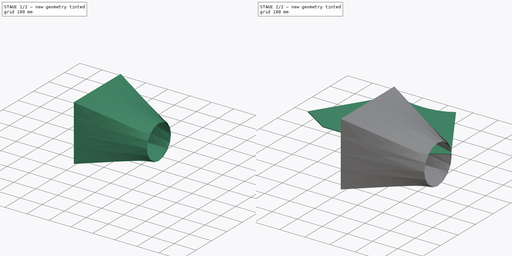
[diagram: build sequence overview — one tinted view per stage of 2, left to right]
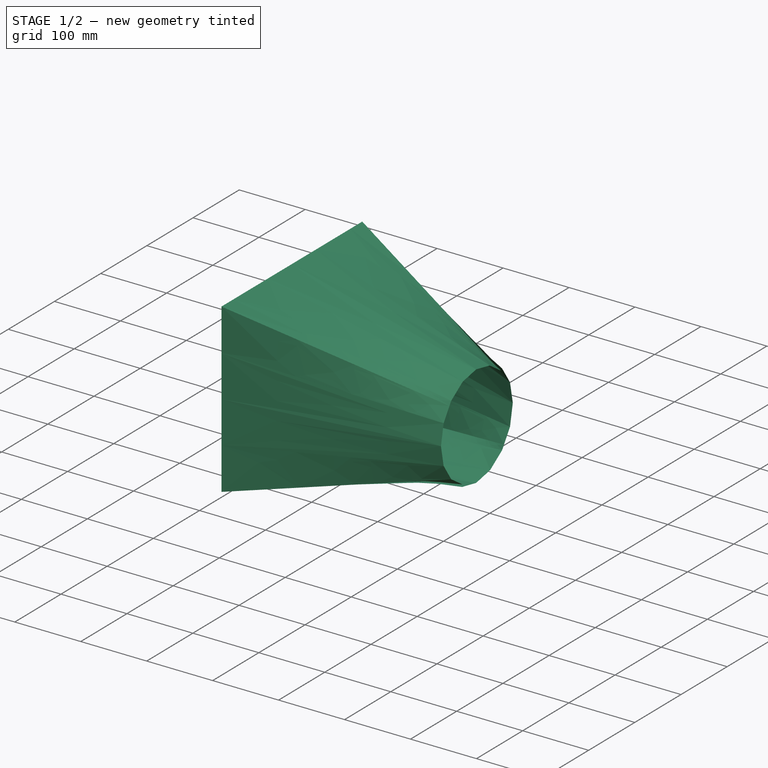
[diagram: stage 1 of 2 — iso view after this stage's code; geometry added in this stage tinted green]
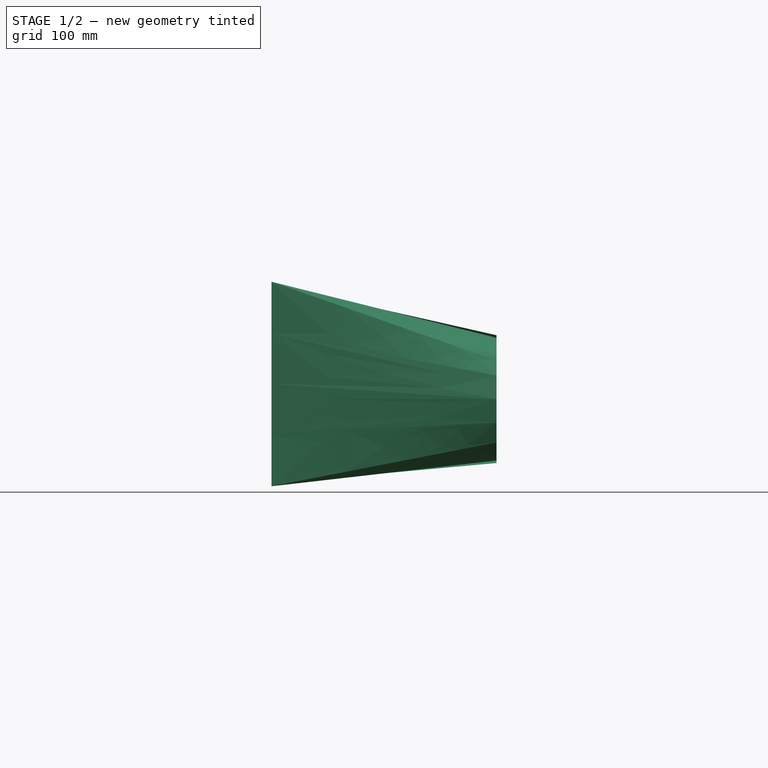
[diagram: stage 1 of 2 — front view after this stage's code; geometry added in this stage tinted green]
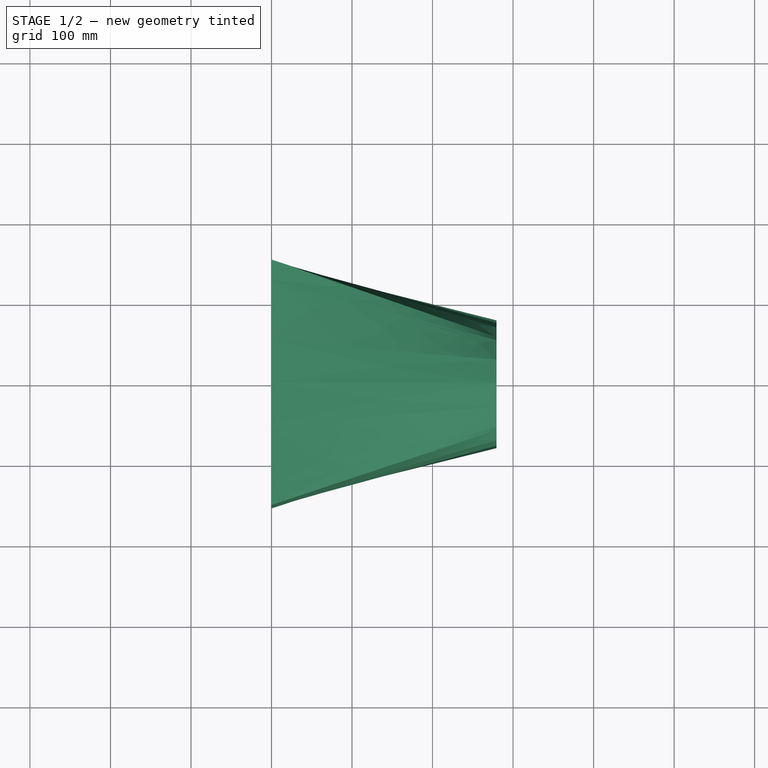
[diagram: stage 1 of 2 — top view after this stage's code; geometry added in this stage tinted green]
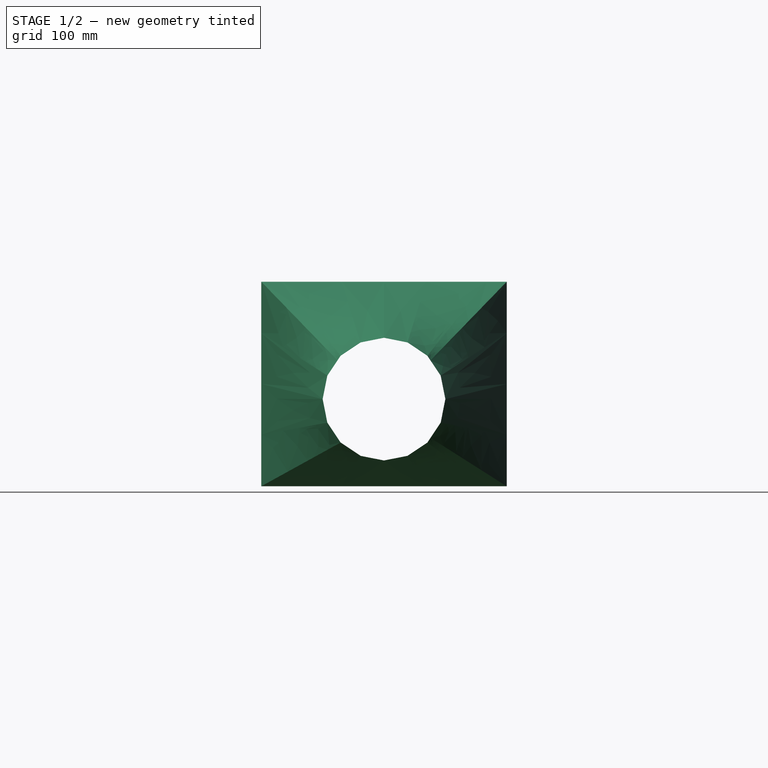
[diagram: stage 1 of 2 — right view after this stage's code; geometry added in this stage tinted green]
FCSTD DOCUMENT  (FreeCAD 1.1R40971 (Git))
Label: square-to-round
License: All rights reserved
LicenseURL: http://en.wikipedia.org/wiki/All_rights_reserved
objects: Sketcher::SketchObject×7, PartDesign::Body×3, App::Point×3, PartDesign::Pad×1, PartDesign::AdditiveLoft×1
note: 23 computed .brp shape members not serialized (recipe doc carries the construction recipe); baked Part::Feature solids carry a one-line shape summary decoded from their .brp

FEATURE [PartDesign::Body] Body001  label="manufacturing"
  AllowCompound = false
  Group = -> [Sketch003,Pad]
  Origin = -> Origin001
  Tip = -> Pad
FEATURE [PartDesign::AdditiveLoft] AdditiveLoft
  Closed = true
  Placement = pos=(0,0,0) rot=(0.57735,0.57735,0.57735;2.0944rad)
  Profile = -> Sketch
  Ruled = true
  Sections = -> [Sketch001]
  Suppressed = false
FEATURE [PartDesign::Body] Body  label="Lofted"
  AllowCompound = false
  Group = -> [Sketch,Sketch001,Sketch002,AdditiveLoft]
  Origin = -> Origin
  Tip = -> AdditiveLoft
FEATURE [Sketcher::SketchObject] Sketch004  label="square001"
  ArcFitTolerance = 1e-06
  ExternalTypes = [0]
  FullyConstrained = true
  MakeInternals = false
  MapMode = 4
  Placement = pos=(0,0,0) rot=(0.57735,0.57735,0.57735;2.0944rad)
  sketch-geometry (4):
    g0: LineSegment StartX=-177.8 StartY=127 StartZ=0 EndX=-177.8 EndY=-127 EndZ=0
    g1: LineSegment StartX=-177.8 StartY=-127 StartZ=0 EndX=177.8 EndY=-127 EndZ=0
    g2: LineSegment StartX=177.8 StartY=-127 StartZ=0 EndX=177.8 EndY=127 EndZ=0
    g3: LineSegment StartX=177.8 StartY=127 StartZ=0 EndX=-177.8 EndY=127 EndZ=0
  constraints (11):
    c: Coincident(g0,g1)
    c: Coincident(g1,g2)
    c: Coincident(g2,g3)
    c: Coincident(g3,g0)
    c: Vertical(g0)
    c: Vertical(g2)
    c: Horizontal(g1)
    c: Horizontal(g3)
    c: DistanceY(g2,g2) = 254
    c: DistanceX(g3,g3) = 355.6
    c: Symmetric(g0,g1,g-1)
FEATURE [Sketcher::SketchObject] Sketch006  label="path001"
  ArcFitTolerance = 1e-06
  ExternalTypes = [0]
  FullyConstrained = true
  MakeInternals = false
  MapMode = 4
  Placement = pos=(0,0,0) rot=(1,0,0;1.5708rad)
  sketch-geometry (1):
    g0: LineSegment StartX=0 StartY=0 StartZ=0 EndX=304.8 EndY=0 EndZ=0
  constraints (3):
    c: Coincident(g0,g-1)
    c: PointOnObject(g0,g-1)
    c: DistanceX(g0,g0) = 304.8
FEATURE [Sketcher::SketchObject] Sketch005  label="round001"
  ArcFitTolerance = 1e-06
  AttachmentSupport = -> [Sketch006]
  ExternalTypes = [0]
  FullyConstrained = true
  MakeInternals = false
  MapMode = 1
  Placement = pos=(304.8,0,0) rot=(0.57735,0.57735,0.57735;2.0944rad)
  sketch-geometry (17):
    g0: LineSegment StartX=53.8815 StartY=53.8815 StartZ=0 EndX=29.1605 EndY=70.3996 EndZ=0
    g1: LineSegment StartX=29.1605 StartY=70.3996 StartZ=0 EndX=0 EndY=76.2 EndZ=0
    g2: LineSegment StartX=0 StartY=76.2 StartZ=0 EndX=-29.1605 EndY=70.3996 EndZ=0
    g3: LineSegment StartX=-29.1605 StartY=70.3996 StartZ=0 EndX=-53.8815 EndY=53.8815 EndZ=0
    g4: LineSegment StartX=-53.8815 StartY=53.8815 StartZ=0 EndX=-70.3996 EndY=29.1605 EndZ=0
    g5: LineSegment StartX=-70.3996 StartY=29.1605 StartZ=0 EndX=-76.2 EndY=-7.674e-13 EndZ=0
    g6: LineSegment StartX=-76.2 StartY=-7.674e-13 StartZ=0 EndX=-70.3996 EndY=-29.1605 EndZ=0
    g7: LineSegment StartX=-70.3996 StartY=-29.1605 StartZ=0 EndX=-53.8815 EndY=-53.8815 EndZ=0
    g8: LineSegment StartX=-53.8815 StartY=-53.8815 StartZ=0 EndX=-29.1605 EndY=-70.3996 EndZ=0
    g9: LineSegment StartX=-29.1605 StartY=-70.3996 StartZ=0 EndX=-1.137e-13 EndY=-76.2 EndZ=0
    g10: LineSegment StartX=-1.137e-13 StartY=-76.2 StartZ=0 EndX=29.1605 EndY=-70.3996 EndZ=0
    g11: LineSegment StartX=29.1605 StartY=-70.3996 StartZ=0 EndX=53.8815 EndY=-53.8815 EndZ=0
    g12: LineSegment StartX=53.8815 StartY=-53.8815 StartZ=0 EndX=70.3996 EndY=-29.1605 EndZ=0
    g13: LineSegment StartX=70.3996 StartY=-29.1605 StartZ=0 EndX=76.2 EndY=2.49e-14 EndZ=0
    g14: LineSegment StartX=76.2 StartY=2.49e-14 StartZ=0 EndX=70.3996 EndY=29.1605 EndZ=0
    g15: LineSegment StartX=70.3996 StartY=29.1605 StartZ=0 EndX=53.8815 EndY=53.8815 EndZ=0
    g16: Circle [constr] CenterX=0 CenterY=0 CenterZ=0 NormalX=0 NormalY=0 NormalZ=1 AngleXU=0 Radius=76.2
  constraints (36):
    c: Coincident(g0,g1)
    c: Coincident(g1,g2)
    c: Coincident(g2,g3)
    c: Coincident(g3,g4)
    c: Coincident(g4,g5)
    c: Coincident(g5,g6)
    c: Coincident(g6,g7)
    c: Coincident(g7,g8)
    c: Coincident(g8,g9)
    c: Coincident(g9,g10)
    c: Coincident(g10,g11)
    c: Coincident(g11,g12)
    c: Coincident(g12,g13)
    c: Coincident(g13,g14)
    c: Coincident(g14,g15)
    c: Coincident(g15,g0)
    c: Equal(g0, g1-g15) x15
    c: PointOnObject(g0,g16)
    c: PointOnObject(g1,g16)
    c: PointOnObject(g2,g16)
    c: PointOnObject(g3,g16)
    c: PointOnObject(g4,g16)
    c: PointOnObject(g5,g16)
    c: PointOnObject(g6,g16)
    c: PointOnObject(g7,g16)
    c: PointOnObject(g8,g16)
    c: PointOnObject(g9,g16)
    c: PointOnObject(g10,g16)
    c: PointOnObject(g11,g16)
    c: PointOnObject(g12,g16)
    c: PointOnObject(g13,g16)
    c: PointOnObject(g14,g16)
    c: PointOnObject(g15,g16)
    c: PointOnObject(g1,g-2)
    c: Diameter(g16) = 152.4
    c: Coincident(g16,g-1)
FEATURE [PartDesign::Body] Body002  label="developed"
  AllowCompound = false
  Group = -> [Sketch004,Sketch005,Sketch006]
  Origin = -> Origin002
FEATURE [App::Point] Origin003  label="Origin"
  Role = Origin
FEATURE [App::Point] Origin004  label="Origin"
  Role = Origin
FEATURE [App::Point] Origin005  label="Origin"
  Role = Origin
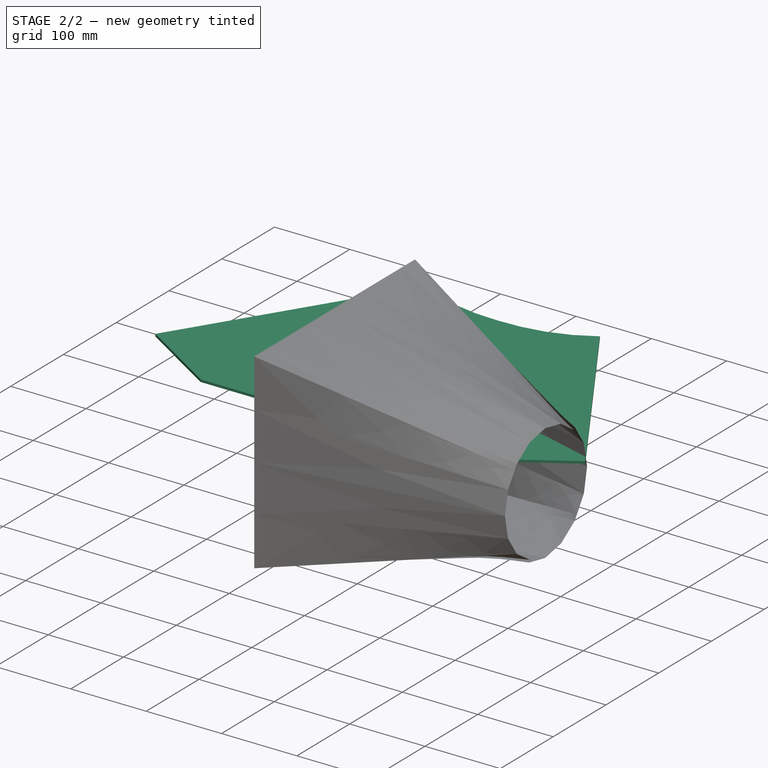
[diagram: stage 2 of 2 — iso view after this stage's code; geometry added in this stage tinted green]
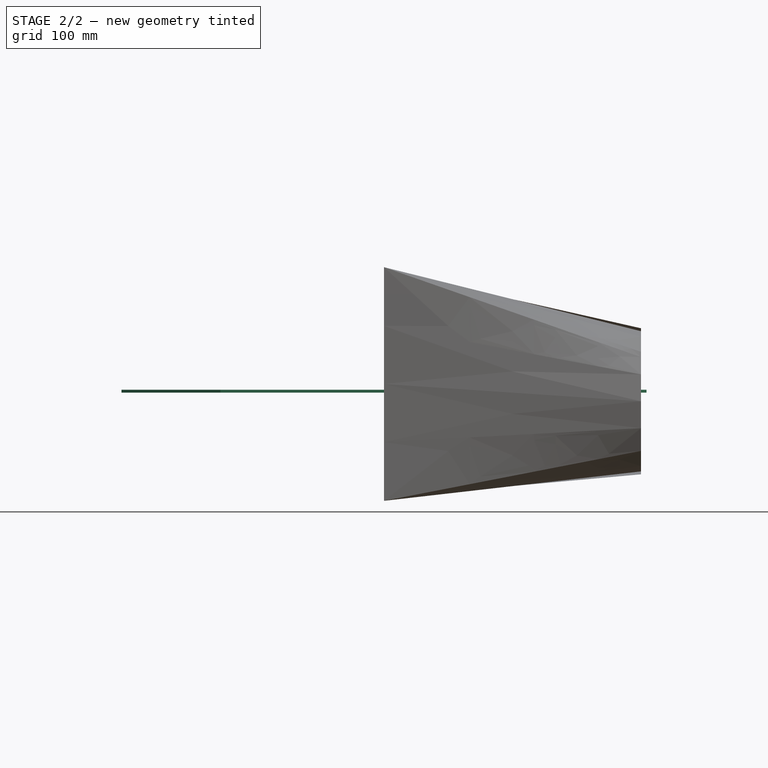
[diagram: stage 2 of 2 — front view after this stage's code; geometry added in this stage tinted green]
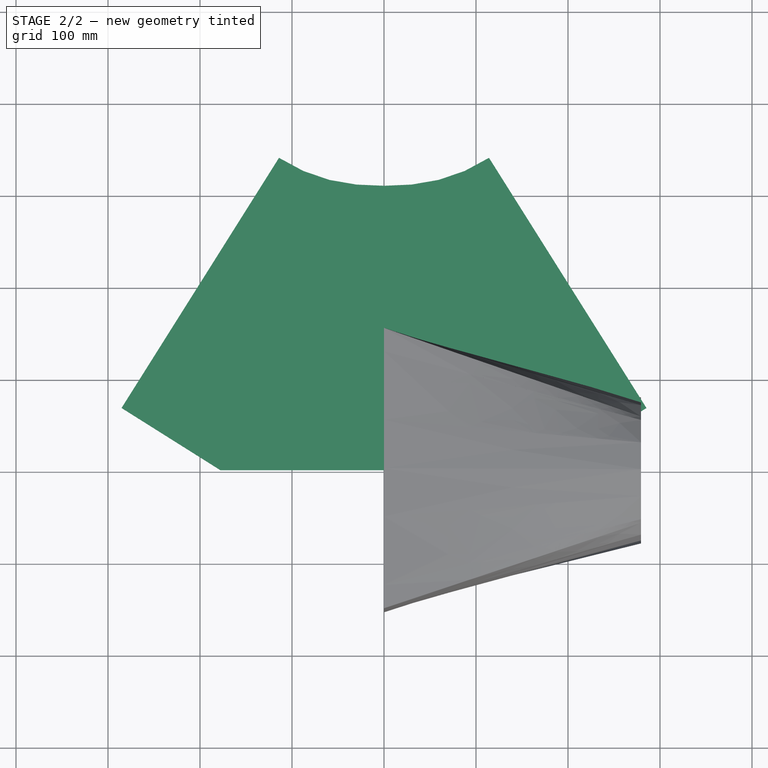
[diagram: stage 2 of 2 — top view after this stage's code; geometry added in this stage tinted green]
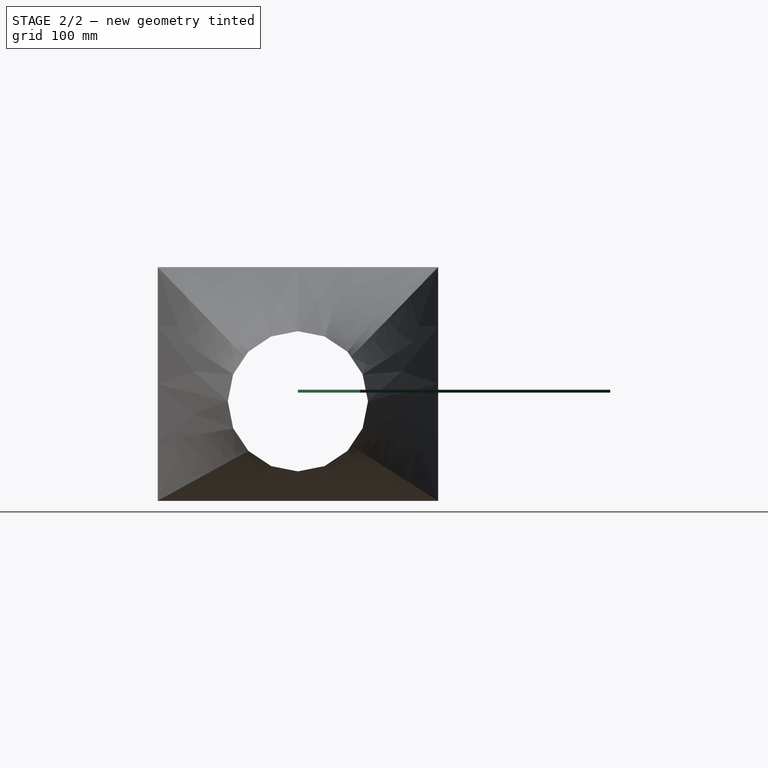
[diagram: stage 2 of 2 — right view after this stage's code; geometry added in this stage tinted green]
FEATURE [Sketcher::SketchObject] Sketch  label="square"
  ArcFitTolerance = 1e-06
  ExternalTypes = [0]
  FullyConstrained = true
  MakeInternals = false
  MapMode = 4
  Placement = pos=(0,0,0) rot=(0.57735,0.57735,0.57735;2.0944rad)
  sketch-geometry (8):
    g0: LineSegment StartX=-152.4 StartY=136.398 StartZ=0 EndX=-152.4 EndY=-117.602 EndZ=0
    g1: LineSegment StartX=-152.4 StartY=-117.602 StartZ=0 EndX=152.4 EndY=-117.602 EndZ=0
    g2: LineSegment StartX=152.4 StartY=-117.602 StartZ=0 EndX=152.4 EndY=136.398 EndZ=0
    g3: LineSegment StartX=152.4 StartY=136.398 StartZ=0 EndX=-152.4 EndY=136.398 EndZ=0
    g4: LineSegment StartX=-149.225 StartY=133.223 StartZ=0 EndX=-149.225 EndY=-114.3 EndZ=0
    g5: LineSegment StartX=-149.225 StartY=-114.3 StartZ=0 EndX=149.225 EndY=-114.3 EndZ=0
    g6: LineSegment StartX=149.225 StartY=-114.3 StartZ=0 EndX=149.225 EndY=133.223 EndZ=0
    g7: LineSegment StartX=149.225 StartY=133.223 StartZ=0 EndX=-149.225 EndY=133.223 EndZ=0
  constraints (22):
    c: Coincident(g0,g1)
    c: Coincident(g1,g2)
    c: Vertical(g0)
    c: Coincident(g4,g5)
    c: Coincident(g5,g6)
    c: Coincident(g6,g7)
    c: Coincident(g7,g4)
    c: Vertical(g4)
    c: DistanceY(g2,g2) = 254
    c: DistanceX(g5,g1) = 3.175
    c: DistanceY(g6,g2) = 3.175
    c: DistanceY(g1,g5) = 3.302
    c: Vertical(g6)
    c: Vertical(g2)
    c: Coincident(g0,g3)
    c: Coincident(g2,g3)
    c: Symmetric(g2,g0,g-2)
    c: Symmetric(g4,g6,g-2)
    c: Horizontal(g1)
    c: Horizontal(g5)
    c: DistanceY(g1,g-1) = 117.602
    c: DistanceX(g3,g3) = 304.8
FEATURE [Sketcher::SketchObject] Sketch002  label="path"
  ArcFitTolerance = 1e-06
  ExternalTypes = [0]
  FullyConstrained = true
  MakeInternals = false
  MapMode = 4
  Placement = pos=(0,0,0) rot=(1,0,0;1.5708rad)
  sketch-geometry (1):
    g0: LineSegment StartX=0 StartY=0 StartZ=0 EndX=279.4 EndY=-9.398 EndZ=0
  constraints (3):
    c: Coincident(g0,g-1)
    c: DistanceX(g0,g0) = 279.4
    c: DistanceY(g0,g-1) = 9.398
FEATURE [Sketcher::SketchObject] Sketch001  label="round"
  ArcFitTolerance = 1e-06
  AttachmentSupport = -> [Sketch002]
  ExternalTypes = [0]
  FullyConstrained = true
  MakeInternals = false
  MapMode = 1
  Placement = pos=(279.4,2.1e-15,-9.398) rot=(0.57735,0.57735,0.57735;2.0944rad)
  sketch-geometry (34):
    g0: LineSegment StartX=0 StartY=76.2 StartZ=0 EndX=-29.1605 EndY=70.3996 EndZ=0
    g1: LineSegment StartX=-29.1605 StartY=70.3996 StartZ=0 EndX=-53.8815 EndY=53.8815 EndZ=0
    g2: LineSegment StartX=-53.8815 StartY=53.8815 StartZ=0 EndX=-70.3996 EndY=29.1605 EndZ=0
    g3: LineSegment StartX=-70.3996 StartY=29.1605 StartZ=0 EndX=-76.2 EndY=-3.6e-15 EndZ=0
    g4: LineSegment StartX=-76.2 StartY=-3.6e-15 StartZ=0 EndX=-70.3996 EndY=-29.1605 EndZ=0
    g5: LineSegment StartX=-70.3996 StartY=-29.1605 StartZ=0 EndX=-53.8815 EndY=-53.8815 EndZ=0
    g6: LineSegment StartX=-53.8815 StartY=-53.8815 StartZ=0 EndX=-29.1605 EndY=-70.3996 EndZ=0
    g7: LineSegment StartX=-29.1605 StartY=-70.3996 StartZ=0 EndX=3.6e-15 EndY=-76.2 EndZ=0
    g8: LineSegment StartX=3.6e-15 StartY=-76.2 StartZ=0 EndX=29.1605 EndY=-70.3996 EndZ=0
    g9: LineSegment StartX=29.1605 StartY=-70.3996 StartZ=0 EndX=53.8815 EndY=-53.8815 EndZ=0
    g10: LineSegment StartX=53.8815 StartY=-53.8815 StartZ=0 EndX=70.3996 EndY=-29.1605 EndZ=0
    g11: LineSegment StartX=70.3996 StartY=-29.1605 StartZ=0 EndX=76.2 EndY=0 EndZ=0
    g12: LineSegment StartX=76.2 StartY=0 StartZ=0 EndX=70.3996 EndY=29.1605 EndZ=0
    g13: LineSegment StartX=70.3996 StartY=29.1605 StartZ=0 EndX=53.8815 EndY=53.8815 EndZ=0
    g14: LineSegment StartX=53.8815 StartY=53.8815 StartZ=0 EndX=29.1605 EndY=70.3996 EndZ=0
    g15: LineSegment StartX=29.1605 StartY=70.3996 StartZ=0 EndX=0 EndY=76.2 EndZ=0
    g16: Circle [constr] CenterX=0 CenterY=0 CenterZ=0 NormalX=0 NormalY=0 NormalZ=1 AngleXU=0 Radius=76.2
    g17: LineSegment StartX=30.3755 StartY=73.3329 StartZ=0 EndX=0 EndY=79.375 EndZ=0
    g18: LineSegment StartX=0 StartY=79.375 StartZ=0 EndX=-30.3755 EndY=73.3329 EndZ=0
    g19: LineSegment StartX=-30.3755 StartY=73.3329 StartZ=0 EndX=-56.1266 EndY=56.1266 EndZ=0
    g20: LineSegment StartX=-56.1266 StartY=56.1266 StartZ=0 EndX=-73.3329 EndY=30.3755 EndZ=0
    g21: LineSegment StartX=-73.3329 StartY=30.3755 StartZ=0 EndX=-79.375 EndY=-3.6e-15 EndZ=0
    g22: LineSegment StartX=-79.375 StartY=-3.6e-15 StartZ=0 EndX=-73.3329 EndY=-30.3755 EndZ=0
    g23: LineSegment StartX=-73.3329 StartY=-30.3755 StartZ=0 EndX=-56.1266 EndY=-56.1266 EndZ=0
    g24: LineSegment StartX=-56.1266 StartY=-56.1266 StartZ=0 EndX=-30.3755 EndY=-73.3329 EndZ=0
    g25: LineSegment StartX=-30.3755 StartY=-73.3329 StartZ=0 EndX=-3.6e-15 EndY=-79.375 EndZ=0
    g26: LineSegment StartX=-3.6e-15 StartY=-79.375 StartZ=0 EndX=30.3755 EndY=-73.3329 EndZ=0
    g27: LineSegment StartX=30.3755 StartY=-73.3329 StartZ=0 EndX=56.1266 EndY=-56.1266 EndZ=0
    g28: LineSegment StartX=56.1266 StartY=-56.1266 StartZ=0 EndX=73.3329 EndY=-30.3755 EndZ=0
    g29: LineSegment StartX=73.3329 StartY=-30.3755 StartZ=0 EndX=79.375 EndY=3.6e-15 EndZ=0
    g30: LineSegment StartX=79.375 StartY=3.6e-15 StartZ=0 EndX=73.3329 EndY=30.3755 EndZ=0
    g31: LineSegment StartX=73.3329 StartY=30.3755 StartZ=0 EndX=56.1266 EndY=56.1266 EndZ=0
    g32: LineSegment StartX=56.1266 StartY=56.1266 StartZ=0 EndX=30.3755 EndY=73.3329 EndZ=0
    g33: Circle [constr] CenterX=0 CenterY=0 CenterZ=0 NormalX=0 NormalY=0 NormalZ=1 AngleXU=0 Radius=79.375
  constraints (72):
    c: Coincident(g0,g1)
    c: Coincident(g1,g2)
    c: Coincident(g2,g3)
    c: Coincident(g3,g4)
    c: Coincident(g4,g5)
    c: Coincident(g5,g6)
    c: Coincident(g6,g7)
    c: Coincident(g7,g8)
    c: Coincident(g8,g9)
    c: Coincident(g9,g10)
    c: Coincident(g10,g11)
    c: Coincident(g11,g12)
    c: Coincident(g12,g13)
    c: Coincident(g13,g14)
    c: Coincident(g14,g15)
    c: Coincident(g15,g0)
    c: Equal(g0, g1-g15) x15
    c: PointOnObject(g0,g16)
    c: PointOnObject(g1,g16)
    c: PointOnObject(g2,g16)
    c: PointOnObject(g3,g16)
    c: PointOnObject(g4,g16)
    c: PointOnObject(g5,g16)
    c: PointOnObject(g6,g16)
    c: PointOnObject(g7,g16)
    c: PointOnObject(g8,g16)
    c: PointOnObject(g9,g16)
    c: PointOnObject(g10,g16)
    c: PointOnObject(g11,g16)
    c: PointOnObject(g12,g16)
    c: PointOnObject(g13,g16)
    c: PointOnObject(g14,g16)
    c: PointOnObject(g15,g16)
    c: Vertical(g16,g0)
    c: Diameter(g16) = 152.4
    c: Coincident(g17,g18)
    c: Coincident(g18,g19)
    c: Coincident(g19,g20)
    c: Coincident(g20,g21)
    c: Coincident(g21,g22)
    c: Coincident(g22,g23)
    c: Coincident(g23,g24)
    c: Coincident(g24,g25)
    c: Coincident(g25,g26)
    c: Coincident(g26,g27)
    c: Coincident(g27,g28)
    c: Coincident(g28,g29)
    c: Coincident(g29,g30)
    c: Coincident(g30,g31)
    c: Coincident(g31,g32)
    c: Coincident(g32,g17)
    c: Equal(g17, g18-g32) x15
    c: PointOnObject(g17,g33)
    c: PointOnObject(g18,g33)
    c: PointOnObject(g19,g33)
    c: PointOnObject(g20,g33)
    c: PointOnObject(g21,g33)
    c: PointOnObject(g22,g33)
    c: PointOnObject(g23,g33)
    c: PointOnObject(g24,g33)
    c: PointOnObject(g25,g33)
    c: PointOnObject(g26,g33)
    c: PointOnObject(g27,g33)
    c: PointOnObject(g28,g33)
    c: PointOnObject(g29,g33)
    c: PointOnObject(g30,g33)
    c: PointOnObject(g31,g33)
    c: PointOnObject(g32,g33)
    c: Vertical(g33,g17)
    c: Diameter(g33) = 158.75
    c: Coincident(g16,g33)
    c: Coincident(g-1,g16)
FEATURE [Sketcher::SketchObject] Sketch003
  ArcFitTolerance = 1e-06
  AttachmentSupport = -> [XY_Plane001]
  ExternalTypes = [0]
  FullyConstrained = true
  MakeInternals = false
  MapMode = 5
  sketch-geometry (23):
    g0: LineSegment StartX=-285.284 StartY=67.6473 StartZ=0 EndX=-177.8 EndY=0 EndZ=0
    g1: LineSegment StartX=-177.8 StartY=0 StartZ=0 EndX=177.8 EndY=0 EndZ=0
    g2: LineSegment StartX=177.8 StartY=0 StartZ=0 EndX=285.284 EndY=67.6473 EndZ=0
    g3: LineSegment StartX=285.284 StartY=67.6473 StartZ=0 EndX=114.136 EndY=339.582 EndZ=0
    g4: LineSegment StartX=114.136 StartY=339.582 StartZ=0 EndX=87.7798 EndY=325.342 EndZ=0
    g5: LineSegment StartX=87.7798 StartY=325.342 StartZ=0 EndX=59.4511 EndY=315.597 EndZ=0
    g6: LineSegment StartX=59.4511 StartY=315.597 StartZ=0 EndX=29.9295 EndY=310.504 EndZ=0
    g7: LineSegment StartX=29.9295 StartY=310.504 StartZ=0 EndX=0 EndY=309.204 EndZ=0
    g8: LineSegment StartX=0 StartY=309.204 StartZ=0 EndX=-29.9295 EndY=310.504 EndZ=0
    g9: LineSegment StartX=-29.9295 StartY=310.504 StartZ=0 EndX=-59.4511 EndY=315.597 EndZ=0
    g10: LineSegment StartX=-59.4511 StartY=315.597 StartZ=0 EndX=-87.7798 EndY=325.342 EndZ=0
    g11: LineSegment StartX=-87.7798 StartY=325.342 StartZ=0 EndX=-114.136 EndY=339.582 EndZ=0
    g12: LineSegment StartX=-114.136 StartY=339.582 StartZ=0 EndX=-285.284 EndY=67.6473 EndZ=0
    g13: LineSegment [constr] StartX=0 StartY=309.204 StartZ=0 EndX=177.8 EndY=0 EndZ=0
    g14: LineSegment [constr] StartX=177.8 StartY=0 StartZ=0 EndX=29.9295 EndY=310.504 EndZ=0
    g15: LineSegment [constr] StartX=177.8 StartY=0 StartZ=0 EndX=114.136 EndY=339.582 EndZ=0
    g16: LineSegment [constr] StartX=-177.8 StartY=0 StartZ=0 EndX=-29.9295 EndY=310.504 EndZ=0
    g17: LineSegment [constr] StartX=-59.4511 StartY=315.597 StartZ=0 EndX=-177.8 EndY=0 EndZ=0
    g18: LineSegment [constr] StartX=-177.8 StartY=0 StartZ=0 EndX=-87.7798 EndY=325.342 EndZ=0
    g19: LineSegment [constr] StartX=-114.136 StartY=339.582 StartZ=0 EndX=-177.8 EndY=0 EndZ=0
    g20: LineSegment [constr] StartX=177.8 StartY=0 StartZ=0 EndX=59.4511 EndY=315.597 EndZ=0
    g21: LineSegment [constr] StartX=87.7798 StartY=325.342 StartZ=0 EndX=177.8 EndY=0 EndZ=0
    g22: LineSegment [constr] StartX=-177.8 StartY=0 StartZ=0 EndX=0 EndY=309.204 EndZ=0
  constraints (58):
    c: Coincident(g0,g1)
    c: Coincident(g1,g2)
    c: Coincident(g2,g3)
    c: Coincident(g3,g4)
    c: Coincident(g4,g5)
    c: Coincident(g5,g6)
    c: Coincident(g6,g7)
    c: Coincident(g7,g8)
    c: Coincident(g8,g9)
    c: Coincident(g9,g10)
    c: Coincident(g10,g11)
    c: Coincident(g11,g12)
    c: Coincident(g12,g0)
    c: PointOnObject(g7,g-2)
    c: Coincident(g13,g7)
    c: Coincident(g13,g1)
    c: Coincident(g14,g1)
    c: Coincident(g14,g6)
    c: Coincident(g15,g1)
    c: Coincident(g15,g3)
    c: Coincident(g16,g0)
    c: Coincident(g16,g8)
    c: Coincident(g17,g9)
    c: Coincident(g17,g0)
    c: Coincident(g18,g0)
    c: Coincident(g18,g10)
    c: Coincident(g19,g11)
    c: Coincident(g19,g0)
    c: Coincident(g20,g1)
    c: Coincident(g20,g5)
    c: Coincident(g21,g4)
    c: Coincident(g21,g1)
    c: Coincident(g22,g0)
    c: Coincident(g22,g7)
    c: Symmetric(g0,g1,g-2)
    c: PointOnObject(g0,g-1)
    c: DistanceX(g1,g1) = 355.6
    c: Distance(g2) = 127
    c: Distance(g3) = 321.31
    c: Equal(g4,g5)
    c: Equal(g5,g6)
    c: Equal(g6,g7)
    c: Equal(g7,g8)
    c: Equal(g8,g9)
    c: Equal(g9,g10)
    c: Equal(g10,g11)
    c: Equal(g12,g3)
    c: Equal(g0,g2)
    c: Perpendicular(g2,g3)
    c: Angle(g13,g1) = 1.04894
    c: Distance(g14) = 343.916
    c: Distance(g20) = 337.058
    c: Distance(g21) = 337.566
    c: Equal(g16,g14)
    c: Equal(g17,g20)
    c: Equal(g21,g18)
    c: Equal(g19,g15)
    c: Distance(g7,g3) = 118.11
FEATURE [PartDesign::Pad] Pad
  Direction = (0,0,1)
  Length = 3.175
  Length2 = 10
  Profile = -> Sketch003
  ReferenceAxis = -> Sketch003 [N_Axis]
  Suppressed = false
  Type = 0
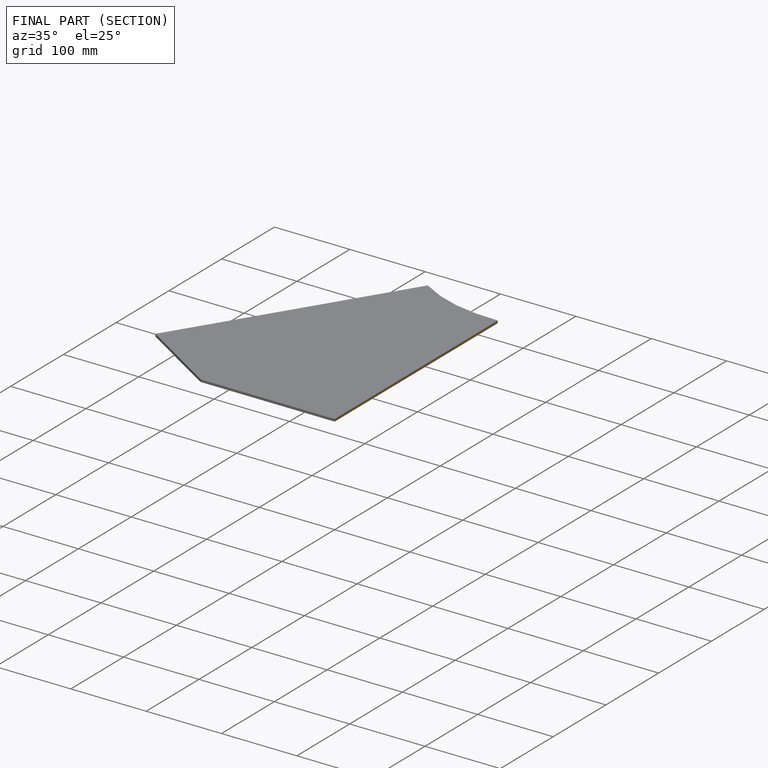
[diagram: finished part — half-section view (interior)]
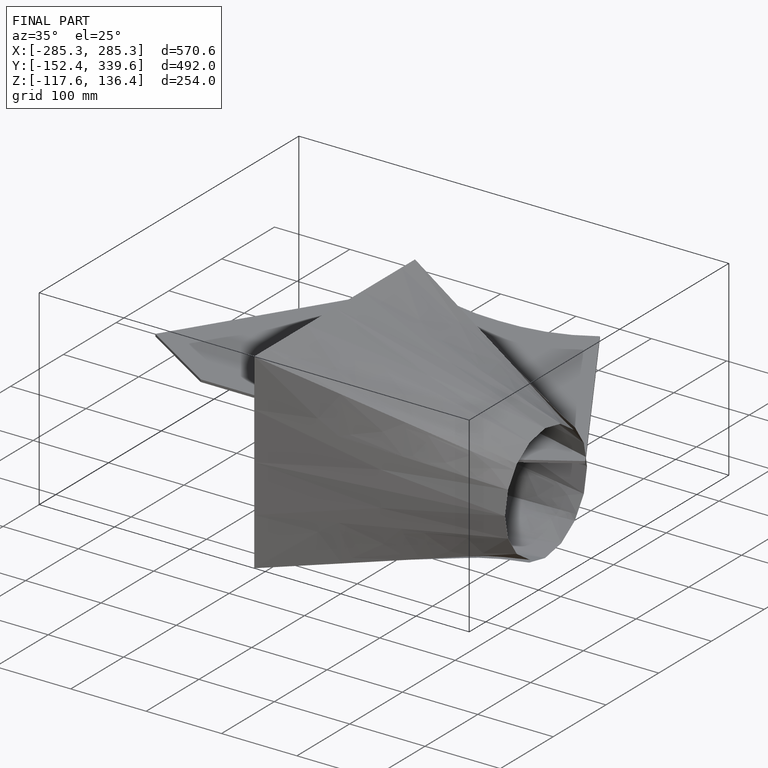
[diagram: finished part — iso view with bounding-box wireframe]
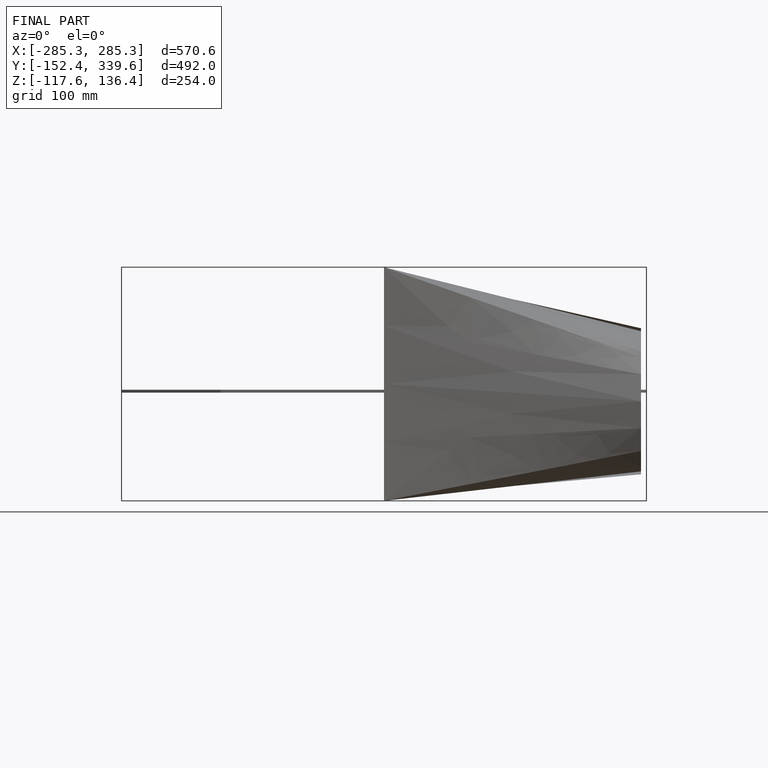
[diagram: finished part — front view with bounding-box wireframe]
